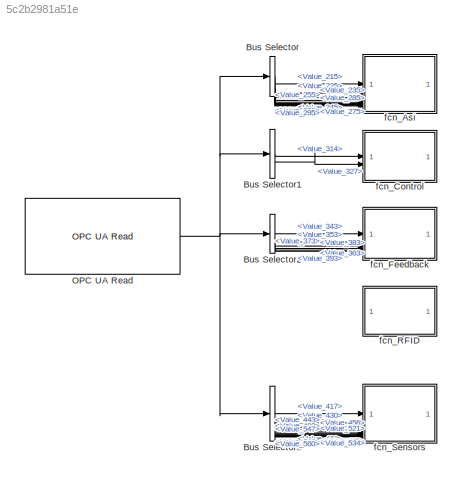
MODEL slx_5c2b2981a51e
KIND model
CONFIG AbsTol = auto
CONFIG EnableMultiTasking = off
CONFIG FixedStep = auto
CONFIG MaxStep = auto
CONFIG MinStep = auto
CONFIG RelTol = 1e-3
CONFIG SampleTimeConstraint = Unconstrained
CONFIG SolverName = VariableStepAuto
CONFIG StartTime = 0.0
CONFIG StopTime = 10.0
BLOCK [BusSelector] Bus Selector
  OutputSignals = Value_215,Value_225,Value_235,Value_245,Value_255,Value_265,Value_275,Value_285,Value_295
BLOCK [BusSelector] Bus Selector1
  OutputSignals = Value_314,Value_327
BLOCK [BusSelector] Bus Selector2
  OutputSignals = Value_343,Value_353,Value_363,Value_373,Value_383,Value_393
BLOCK [BusSelector] Bus Selector3
  OutputSignals = Value_417,Value_430,Value_443,Value_456,Value_469,Value_482,Value_495,Value_508,Value_521,Value_534,Value_547,Value_560
BLOCK [Reference] OPC UA Read  REF=opcualib/OPC UA Read
  SourceBlock = opcualib/OPC UA Read
  SourceType = opcUARead
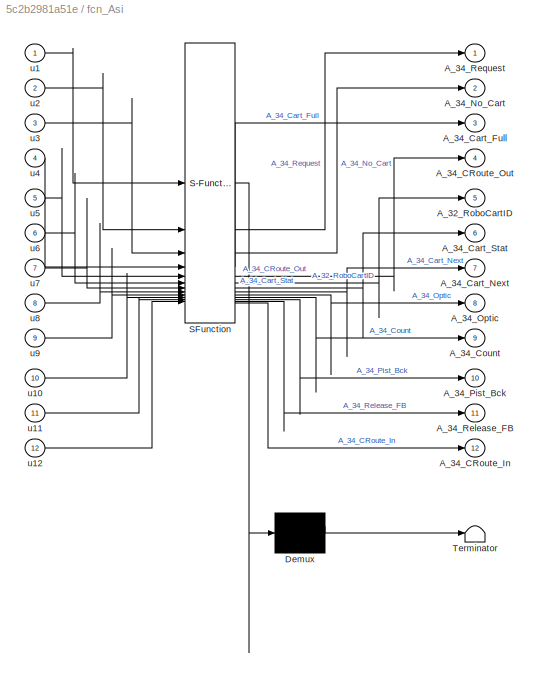
BLOCK [SubSystem] fcn_Asi
  ErrorFcn = Stateflow.Translate.translate
  PermitHierarchicalResolution = ExplicitOnly
  SFBlockType = MATLAB Function
  TreatAsAtomicUnit = on
BLOCK [Demux] fcn_Asi/ Demux 
  Outputs = 1
BLOCK [S-Function] fcn_Asi/ SFunction 
  EnableBusSupport = off
  FunctionName = sf_sfun
  PortCounts = [12 13]
  SFcnIsStateOwnerBlock = off
  SFunctionDeploymentMode = off
  Tag = Stateflow S-Function 2
BLOCK [Terminator] fcn_Asi/ Terminator 
BLOCK [Outport] fcn_Asi/A_32_RoboCartID
  Port = 5
BLOCK [Outport] fcn_Asi/A_34_CRoute_In
  Port = 12
BLOCK [Outport] fcn_Asi/A_34_CRoute_Out
  Port = 4
BLOCK [Outport] fcn_Asi/A_34_Cart_Full
  Port = 3
BLOCK [Outport] fcn_Asi/A_34_Cart_Next
  Port = 7
BLOCK [Outport] fcn_Asi/A_34_Cart_Stat
  Port = 6
BLOCK [Outport] fcn_Asi/A_34_Count
  Port = 9
BLOCK [Outport] fcn_Asi/A_34_No_Cart
  Port = 2
BLOCK [Outport] fcn_Asi/A_34_Optic
  Port = 8
BLOCK [Outport] fcn_Asi/A_34_Pist_Bck
  Port = 10
BLOCK [Outport] fcn_Asi/A_34_Release_FB
  Port = 11
BLOCK [Outport] fcn_Asi/A_34_Request
BLOCK [Inport] fcn_Asi/u1
BLOCK [Inport] fcn_Asi/u10
  Port = 10
BLOCK [Inport] fcn_Asi/u11
  Port = 11
BLOCK [Inport] fcn_Asi/u12
  Port = 12
BLOCK [Inport] fcn_Asi/u2
  Port = 2
BLOCK [Inport] fcn_Asi/u3
  Port = 3
BLOCK [Inport] fcn_Asi/u4
  Port = 4
BLOCK [Inport] fcn_Asi/u5
  Port = 5
BLOCK [Inport] fcn_Asi/u6
  Port = 6
BLOCK [Inport] fcn_Asi/u7
  Port = 7
BLOCK [Inport] fcn_Asi/u8
  Port = 8
BLOCK [Inport] fcn_Asi/u9
  Port = 9
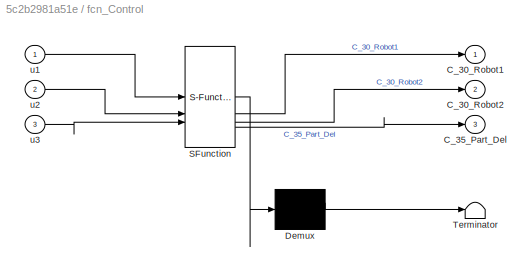
BLOCK [SubSystem] fcn_Control
  ErrorFcn = Stateflow.Translate.translate
  PermitHierarchicalResolution = ExplicitOnly
  SFBlockType = MATLAB Function
  TreatAsAtomicUnit = on
BLOCK [Demux] fcn_Control/ Demux 
  Outputs = 1
BLOCK [S-Function] fcn_Control/ SFunction 
  EnableBusSupport = off
  FunctionName = sf_sfun
  PortCounts = [3 4]
  SFcnIsStateOwnerBlock = off
  SFunctionDeploymentMode = off
  Tag = Stateflow S-Function 1
BLOCK [Terminator] fcn_Control/ Terminator 
BLOCK [Outport] fcn_Control/C_30_Robot1
BLOCK [Outport] fcn_Control/C_30_Robot2
  Port = 2
BLOCK [Outport] fcn_Control/C_35_Part_Del
  Port = 3
BLOCK [Inport] fcn_Control/u1
BLOCK [Inport] fcn_Control/u2
  Port = 2
BLOCK [Inport] fcn_Control/u3
  Port = 3
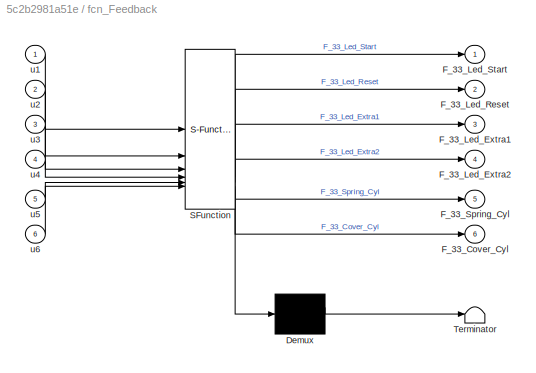
BLOCK [SubSystem] fcn_Feedback
  ErrorFcn = Stateflow.Translate.translate
  PermitHierarchicalResolution = ExplicitOnly
  SFBlockType = MATLAB Function
  TreatAsAtomicUnit = on
BLOCK [Demux] fcn_Feedback/ Demux 
  Outputs = 1
BLOCK [S-Function] fcn_Feedback/ SFunction 
  EnableBusSupport = off
  FunctionName = sf_sfun
  PortCounts = [6 7]
  SFcnIsStateOwnerBlock = off
  SFunctionDeploymentMode = off
  Tag = Stateflow S-Function 3
BLOCK [Terminator] fcn_Feedback/ Terminator 
BLOCK [Outport] fcn_Feedback/F_33_Cover_Cyl
  Port = 6
BLOCK [Outport] fcn_Feedback/F_33_Led_Extra1
  Port = 3
BLOCK [Outport] fcn_Feedback/F_33_Led_Extra2
  Port = 4
BLOCK [Outport] fcn_Feedback/F_33_Led_Reset
  Port = 2
BLOCK [Outport] fcn_Feedback/F_33_Led_Start
BLOCK [Outport] fcn_Feedback/F_33_Spring_Cyl
  Port = 5
BLOCK [Inport] fcn_Feedback/u1
BLOCK [Inport] fcn_Feedback/u2
  Port = 2
BLOCK [Inport] fcn_Feedback/u3
  Port = 3
BLOCK [Inport] fcn_Feedback/u4
  Port = 4
BLOCK [Inport] fcn_Feedback/u5
  Port = 5
BLOCK [Inport] fcn_Feedback/u6
  Port = 6
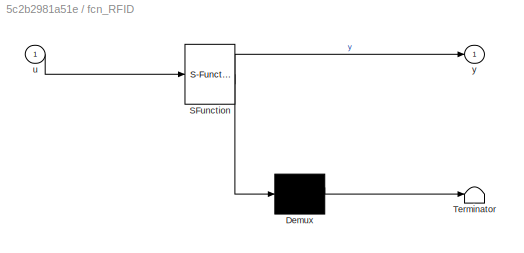
BLOCK [SubSystem] fcn_RFID
  ErrorFcn = Stateflow.Translate.translate
  PermitHierarchicalResolution = ExplicitOnly
  SFBlockType = MATLAB Function
  TreatAsAtomicUnit = on
BLOCK [Demux] fcn_RFID/ Demux 
  Outputs = 1
BLOCK [S-Function] fcn_RFID/ SFunction 
  EnableBusSupport = off
  FunctionName = sf_sfun
  PortCounts = [1 2]
  SFcnIsStateOwnerBlock = off
  SFunctionDeploymentMode = off
  Tag = Stateflow S-Function 5
BLOCK [Terminator] fcn_RFID/ Terminator 
BLOCK [Inport] fcn_RFID/u
BLOCK [Outport] fcn_RFID/y
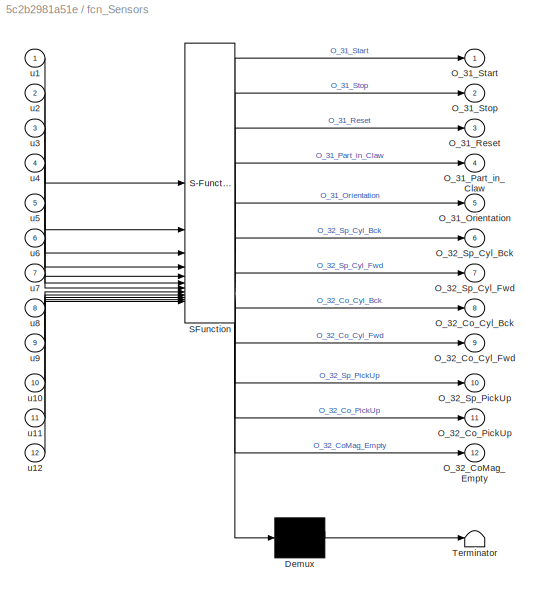
BLOCK [SubSystem] fcn_Sensors
  ErrorFcn = Stateflow.Translate.translate
  PermitHierarchicalResolution = ExplicitOnly
  SFBlockType = MATLAB Function
  TreatAsAtomicUnit = on
BLOCK [Demux] fcn_Sensors/ Demux 
  Outputs = 1
BLOCK [S-Function] fcn_Sensors/ SFunction 
  EnableBusSupport = off
  FunctionName = sf_sfun
  PortCounts = [12 13]
  SFcnIsStateOwnerBlock = off
  SFunctionDeploymentMode = off
  Tag = Stateflow S-Function 4
BLOCK [Terminator] fcn_Sensors/ Terminator 
BLOCK [Outport] fcn_Sensors/O_31_Orientation
  Port = 5
BLOCK [Outport] fcn_Sensors/O_31_Part_in_Claw
  Port = 4
BLOCK [Outport] fcn_Sensors/O_31_Reset
  Port = 3
BLOCK [Outport] fcn_Sensors/O_31_Start
BLOCK [Outport] fcn_Sensors/O_31_Stop
  Port = 2
BLOCK [Outport] fcn_Sensors/O_32_CoMag_Empty
  Port = 12
BLOCK [Outport] fcn_Sensors/O_32_Co_Cyl_Bck
  Port = 8
BLOCK [Outport] fcn_Sensors/O_32_Co_Cyl_Fwd
  Port = 9
BLOCK [Outport] fcn_Sensors/O_32_Co_PickUp
  Port = 11
BLOCK [Outport] fcn_Sensors/O_32_Sp_Cyl_Bck
  Port = 6
BLOCK [Outport] fcn_Sensors/O_32_Sp_Cyl_Fwd
  Port = 7
BLOCK [Outport] fcn_Sensors/O_32_Sp_PickUp
  Port = 10
BLOCK [Inport] fcn_Sensors/u1
BLOCK [Inport] fcn_Sensors/u10
  Port = 10
BLOCK [Inport] fcn_Sensors/u11
  Port = 11
BLOCK [Inport] fcn_Sensors/u12
  Port = 12
BLOCK [Inport] fcn_Sensors/u2
  Port = 2
BLOCK [Inport] fcn_Sensors/u3
  Port = 3
BLOCK [Inport] fcn_Sensors/u4
  Port = 4
BLOCK [Inport] fcn_Sensors/u5
  Port = 5
BLOCK [Inport] fcn_Sensors/u6
  Port = 6
BLOCK [Inport] fcn_Sensors/u7
  Port = 7
BLOCK [Inport] fcn_Sensors/u8
  Port = 8
BLOCK [Inport] fcn_Sensors/u9
  Port = 9
LINE Bus Selector1:1 -> fcn_Control:1
LINE Bus Selector1:2 -> fcn_Control:2
LINE Bus Selector2:1 -> fcn_Feedback:1
LINE Bus Selector2:2 -> fcn_Feedback:2
LINE Bus Selector2:3 -> fcn_Feedback:3
LINE Bus Selector2:4 -> fcn_Feedback:4
LINE Bus Selector2:5 -> fcn_Feedback:5
LINE Bus Selector2:6 -> fcn_Feedback:6
LINE Bus Selector3:1 -> fcn_Sensors:1
LINE Bus Selector3:10 -> fcn_Sensors:10
LINE Bus Selector3:11 -> fcn_Sensors:11
LINE Bus Selector3:12 -> fcn_Sensors:12
LINE Bus Selector3:2 -> fcn_Sensors:2
LINE Bus Selector3:3 -> fcn_Sensors:3
LINE Bus Selector3:4 -> fcn_Sensors:4
LINE Bus Selector3:5 -> fcn_Sensors:5
LINE Bus Selector3:6 -> fcn_Sensors:6
LINE Bus Selector3:7 -> fcn_Sensors:7
LINE Bus Selector3:8 -> fcn_Sensors:8
LINE Bus Selector3:9 -> fcn_Sensors:9
LINE Bus Selector:1 -> fcn_Asi:1
LINE Bus Selector:2 -> fcn_Asi:2
LINE Bus Selector:3 -> fcn_Asi:3
LINE Bus Selector:4 -> fcn_Asi:4
LINE Bus Selector:5 -> fcn_Asi:5
LINE Bus Selector:6 -> fcn_Asi:6
LINE Bus Selector:7 -> fcn_Asi:7
LINE Bus Selector:8 -> fcn_Asi:8
LINE Bus Selector:9 -> fcn_Asi:9
NET OPC UA Read:1 -> Bus Selector1:1, Bus Selector2:1, Bus Selector3:1, Bus Selector:1
note: NET lines group one-source signal fan-out (src -> all destinations, sorted); 1:1 wires keep LINE
CHART fcn_RFID states=1 transitions=1
  STATE_LABEL 'eML_blk_kernel()'
  STATE_LABEL 'SCRIPT:\nfunction y = fcn_RFID(u)\n\ny = u;\n'
CHART fcn_Control states=1 transitions=1
  STATE_LABEL 'eML_blk_kernel()'
  STATE_LABEL 'SCRIPT:\nfunction [C_30_Robot1,C_30_Robot2,C_35_Part_Del] = fcn_Control(u1,u2,u3)\n\nC_30_Robot1 = u1;\nC_30_Robot2 = u2;\nC_35_Part_Del = u3;'
CHART fcn_Asi states=1 transitions=1
  STATE_LABEL 'eML_blk_kernel()'
  STATE_LABEL 'SCRIPT:\nfunction [A_34_Request,A_34_No_Cart,A_34_Cart_Full,A_34_CRoute_Out,...\nA_32_RoboCartID,A_34_Cart_Stat,A_34_Cart_Next,A_34_Optic,A_34_Count,...\nA_34_Pist_Bck,A_34_Release_FB,A_34_CRoute_In]... \n= fcn_Asi(u1,u2,u3,u4,u5,u6,u7,u8,u9,u10,u11,u12)\n\nA_34_Request = u1;\nA_34_No_Cart = u2;\nA_34_Cart_Full = u3;\nA_34_CRoute_Out = u4;\nA_32_RoboCartID = u5;\nA_34_Cart_Stat = u6;\nA_34_Cart_Next = u7;\nA_3...<+96ch>'
CHART fcn_Feedback states=1 transitions=1
  STATE_LABEL 'eML_blk_kernel()'
  STATE_LABEL 'SCRIPT:\nfunction [F_33_Led_Start,F_33_Led_Reset,...\n    F_33_Led_Extra1,F_33_Led_Extra2,...\n    F_33_Spring_Cyl,F_33_Cover_Cyl] = fcn_Feedback(u1,u2,u3,u4,u5,u6)\n\nF_33_Led_Start = u1\nF_33_Led_Reset = u2\nF_33_Led_Extra1 = u3\nF_33_Led_Extra2 = u4\nF_33_Spring_Cyl = u5\nF_33_Cover_Cyl = u6'
CHART fcn_Sensors states=1 transitions=1
  STATE_LABEL 'eML_blk_kernel()'
  STATE_LABEL 'SCRIPT:\nfunction [O_31_Start,...\n    O_31_Stop,O_31_Reset,...\n    O_31_Part_in_Claw,O_31_Orientation,...\n    O_32_Sp_Cyl_Bck,O_32_Sp_Cyl_Fwd,...\n    O_32_Co_Cyl_Bck,O_32_Co_Cyl_Fwd,...\n    O_32_Sp_PickUp,O_32_Co_PickUp,...\n    O_32_CoMag_Empty] = fcn_Sensors(u1,u2,u3,u4,u5,u6,u7,u8,u9,u10,u11,u12)\n\nO_31_Start = u1\nO_31_Stop = u2\nO_31_Reset = u3\nO_31_Part_in_Claw = u4\nO_31_Orientation = u5\nO_32_Sp_...<+140ch>'
CHART  states=0 transitions=0
CHART  states=0 transitions=0
CHART  states=0 transitions=0
CHART  states=0 transitions=0
CHART  states=0 transitions=0
